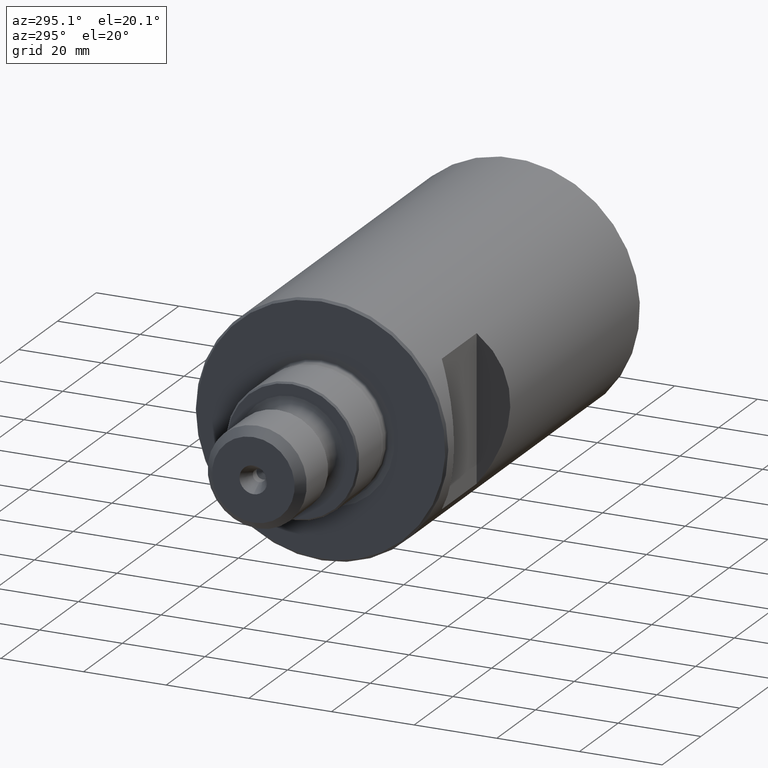
[diagram: clean part render]
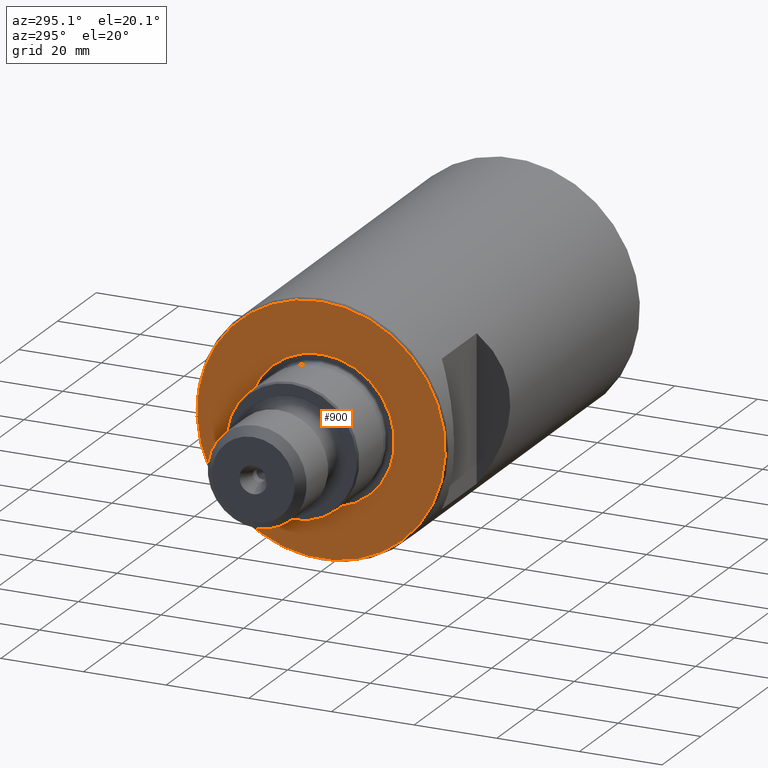
[diagram: same view with one face highlighted and labeled with its STEP entity id]
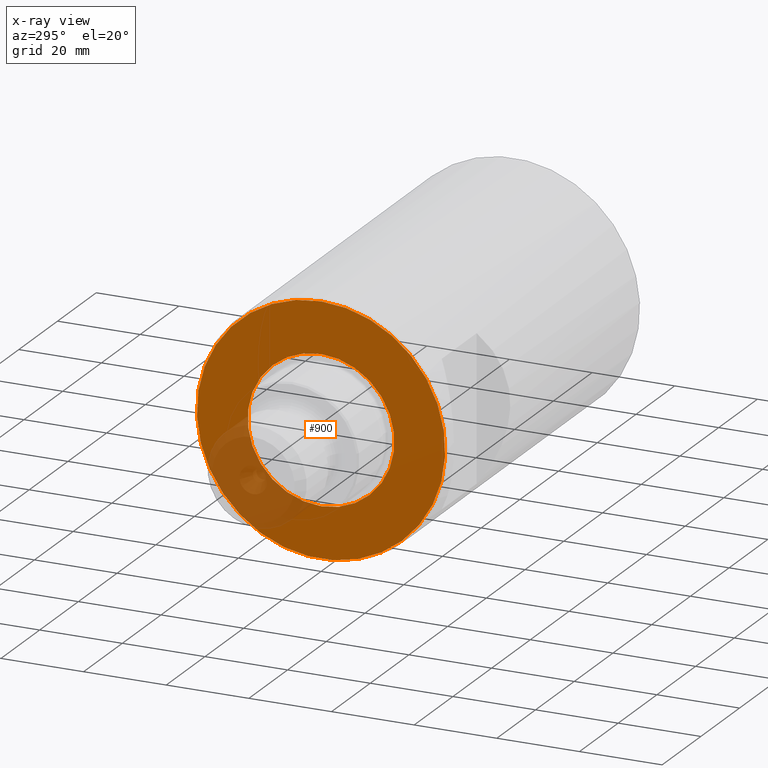
[diagram: x-ray of the same camera — body ghosted, the highlighted face saturated]
A machine part, auxiliary view. The second image highlights one B-rep face of the part: STEP entity #900.
The next image is the same camera in x-ray: the body ghosted, the highlighted face saturated — about 16% of this face is hidden behind the body in this view.
In plain terms, the highlighted planar face has unit normal (-1, 0, 0).
Its self-contained STEP definition (entity closure, byte-faithful):
#41 = VERTEX_POINT ( 'NONE', #870 ) ;
#43 = CARTESIAN_POINT ( 'NONE',  ( -100.0000000000000000, 30.54999999999998600, 0.0000000000000000000 ) ) ;
#76 = AXIS2_PLACEMENT_3D ( 'NONE', #43, #339, #847 ) ;
#112 = CIRCLE ( 'NONE', #874, 17.76503003164297900 ) ;
#121 = ORIENTED_EDGE ( 'NONE', *, *, #592, .T. ) ;
#141 = CARTESIAN_POINT ( 'NONE',  ( -100.0000000000000000, 0.0000000000000000000, 0.0000000000000000000 ) ) ;
#180 = CIRCLE ( 'NONE', #864, 30.04999999999997900 ) ;
#217 = DIRECTION ( 'NONE',  ( 0.0000000000000000000, 0.0000000000000000000, 1.000000000000000000 ) ) ;
#222 = EDGE_LOOP ( 'NONE', ( #121 ) ) ;
#328 = FACE_BOUND ( 'NONE', #832, .T. ) ;
#339 = DIRECTION ( 'NONE',  ( -1.000000000000000000, 0.0000000000000000000, 0.0000000000000000000 ) ) ;
#358 = ORIENTED_EDGE ( 'NONE', *, *, #620, .T. ) ;
#362 = CARTESIAN_POINT ( 'NONE',  ( -100.0000000000000000, 0.0000000000000000000, 30.04999999999997900 ) ) ;
#395 = VERTEX_POINT ( 'NONE', #362 ) ;
#411 = DIRECTION ( 'NONE',  ( 1.000000000000000000, -0.0000000000000000000, -0.0000000000000000000 ) ) ;
#476 = FACE_OUTER_BOUND ( 'NONE', #222, .T. ) ;
#592 = EDGE_CURVE ( 'NONE', #395, #395, #180, .T. ) ;
#620 = EDGE_CURVE ( 'NONE', #41, #41, #112, .T. ) ;
#627 = PLANE ( 'NONE',  #76 ) ;
#659 = DIRECTION ( 'NONE',  ( -1.000000000000000000, 0.0000000000000000000, 0.0000000000000000000 ) ) ;
#832 = EDGE_LOOP ( 'NONE', ( #358 ) ) ;
#847 = DIRECTION ( 'NONE',  ( 0.0000000000000000000, 0.0000000000000000000, 1.000000000000000000 ) ) ;
#848 = CARTESIAN_POINT ( 'NONE',  ( -100.0000000000000000, 0.0000000000000000000, 0.0000000000000000000 ) ) ;
#864 = AXIS2_PLACEMENT_3D ( 'NONE', #141, #659, #217 ) ;
#870 = CARTESIAN_POINT ( 'NONE',  ( -100.0000000000000000, 0.0000000000000000000, -17.76503003164297900 ) ) ;
#874 = AXIS2_PLACEMENT_3D ( 'NONE', #848, #411, #925 ) ;
#900 = ADVANCED_FACE ( 'NONE', ( #476, #328 ), #627, .T. ) ;
#925 = DIRECTION ( 'NONE',  ( 0.0000000000000000000, 0.0000000000000000000, -1.000000000000000000 ) ) ;